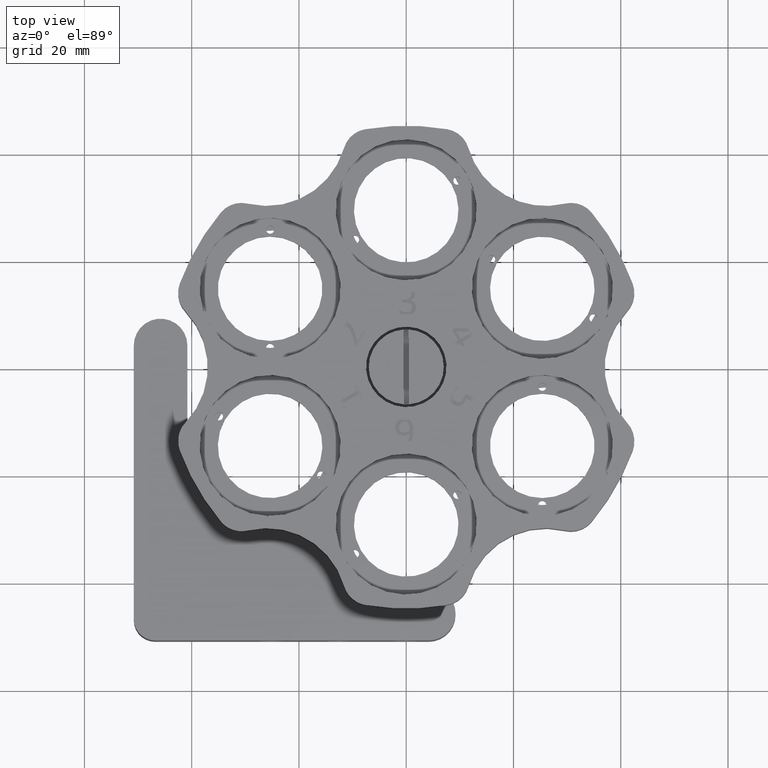
[diagram: clean part render]
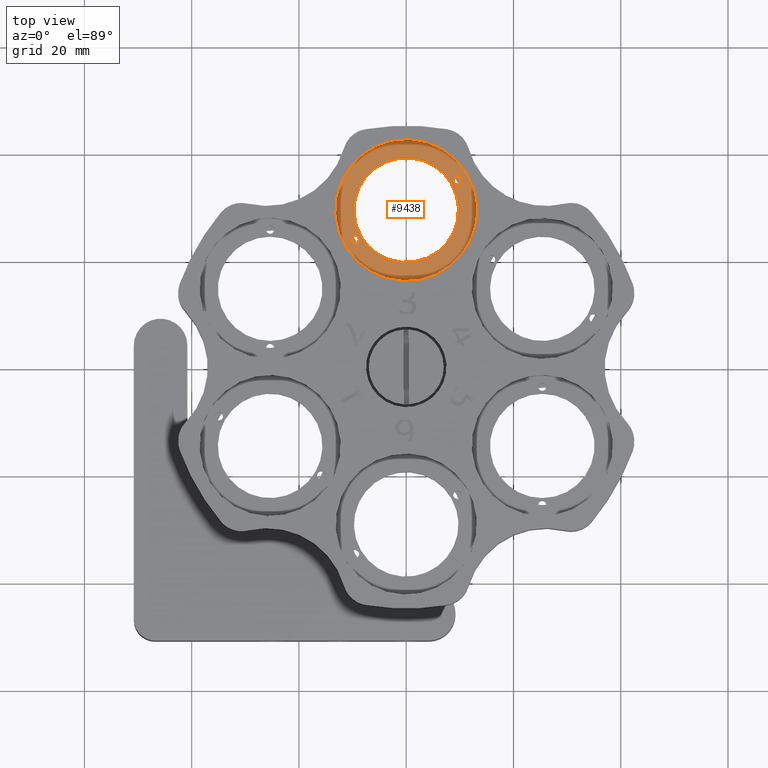
[diagram: same view with one face highlighted and labeled with its STEP entity id]
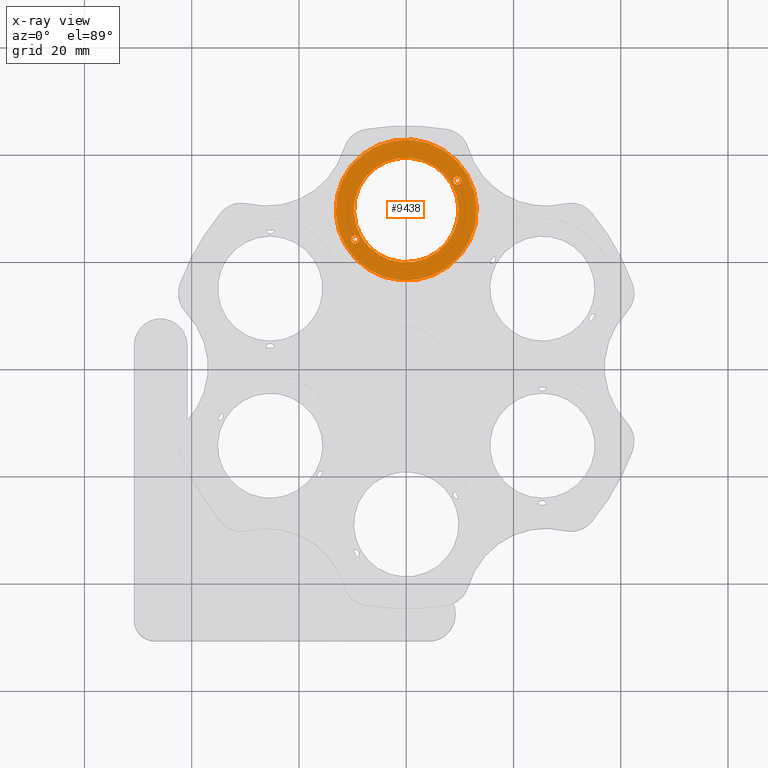
[diagram: x-ray of the same camera — body ghosted, the highlighted face saturated]
A machine part, top view. The second image highlights one B-rep face of the part: STEP entity #9438.
The next image is the same camera in x-ray: the body ghosted, the highlighted face saturated — about 0% of this face is hidden behind the body in this view.
In plain terms, the highlighted planar face has unit normal (0, 0, 1).
Its self-contained STEP definition (entity closure, byte-faithful):
#73 = ORIENTED_EDGE ( 'NONE', *, *, #5224, .F. ) ;
#481 = AXIS2_PLACEMENT_3D ( 'NONE', #11440, #4209, #12657 ) ;
#691 = DIRECTION ( 'NONE',  ( 1.060540212046021500E-016, 1.836909530733552100E-016, 1.000000000000000000 ) ) ;
#711 = EDGE_CURVE ( 'NONE', #15296, #12851, #9513, .T. ) ;
#881 = CARTESIAN_POINT ( 'NONE',  ( -4.676956828086179400E-013, 29.30000000000000100, 8.600000000000003200 ) ) ;
#1195 = VERTEX_POINT ( 'NONE', #10942 ) ;
#1351 = CARTESIAN_POINT ( 'NONE',  ( -4.676956828086179400E-013, 29.30000000000000100, 8.600000000000003200 ) ) ;
#1440 = ORIENTED_EDGE ( 'NONE', *, *, #12852, .F. ) ;
#1575 = EDGE_CURVE ( 'NONE', #12851, #15296, #12241, .T. ) ;
#1740 = EDGE_LOOP ( 'NONE', ( #13508, #73 ) ) ;
#1814 = CARTESIAN_POINT ( 'NONE',  ( -8.876760388791010900, 24.17500000000008200, 8.600000000000015600 ) ) ;
#1866 = EDGE_LOOP ( 'NONE', ( #5506, #2895 ) ) ;
#1963 = CIRCLE ( 'NONE', #9283, 9.750000000000016000 ) ;
#1994 = CARTESIAN_POINT ( 'NONE',  ( 11.38823405976496000, 35.87499999999990100, 8.600000000000001400 ) ) ;
#2392 = AXIS2_PLACEMENT_3D ( 'NONE', #9867, #12414, #9979 ) ;
#2616 = FACE_BOUND ( 'NONE', #1740, .T. ) ;
#2793 = CARTESIAN_POINT ( 'NONE',  ( -9.526279441629345300, 23.80000000000009000, 8.600000000000015600 ) ) ;
#2895 = ORIENTED_EDGE ( 'NONE', *, *, #14958, .F. ) ;
#3405 = CARTESIAN_POINT ( 'NONE',  ( -9.526279441629345300, 23.80000000000009000, 8.600000000000015600 ) ) ;
#3550 = DIRECTION ( 'NONE',  ( 1.060540212046021500E-016, 1.836909530733552100E-016, 1.000000000000000000 ) ) ;
#3623 = CARTESIAN_POINT ( 'NONE',  ( 10.17579849446674900, 35.17499999999992600, 8.599999999999990800 ) ) ;
#3734 = VERTEX_POINT ( 'NONE', #7343 ) ;
#3893 = PLANE ( 'NONE',  #12970 ) ;
#3942 = CIRCLE ( 'NONE', #481, 0.7500000000000010000 ) ;
#4059 = DIRECTION ( 'NONE',  ( 1.060540212046024400E-016, 1.836909530733554100E-016, 1.000000000000000000 ) ) ;
#4209 = DIRECTION ( 'NONE',  ( 1.060540212046021500E-016, 1.836909530733552100E-016, 1.000000000000000000 ) ) ;
#4344 = AXIS2_PLACEMENT_3D ( 'NONE', #15343, #691, #12953 ) ;
#4512 = DIRECTION ( 'NONE',  ( 0.8660254037844432600, 0.4999999999999918400, -1.319181350552703300E-016 ) ) ;
#4597 = ORIENTED_EDGE ( 'NONE', *, *, #711, .T. ) ;
#4605 = DIRECTION ( 'NONE',  ( 0.8660254037844440400, 0.4999999999999905100, 0.0000000000000000000 ) ) ;
#4658 = DIRECTION ( 'NONE',  ( 1.060540212046021500E-016, 1.836909530733552100E-016, 1.000000000000000000 ) ) ;
#4661 = DIRECTION ( 'NONE',  ( 0.8660254037844432600, 0.4999999999999917800, -1.779203565104414700E-016 ) ) ;
#5160 = EDGE_CURVE ( 'NONE', #12642, #14763, #1963, .T. ) ;
#5224 = EDGE_CURVE ( 'NONE', #14763, #12642, #6120, .T. ) ;
#5506 = ORIENTED_EDGE ( 'NONE', *, *, #6839, .F. ) ;
#5824 = FACE_OUTER_BOUND ( 'NONE', #12213, .T. ) ;
#6052 = AXIS2_PLACEMENT_3D ( 'NONE', #1351, #7288, #7342 ) ;
#6120 = CIRCLE ( 'NONE', #6052, 9.750000000000016000 ) ;
#6839 = EDGE_CURVE ( 'NONE', #11518, #3734, #8324, .T. ) ;
#6986 = CARTESIAN_POINT ( 'NONE',  ( -11.38823405976589800, 22.72500000000010400, 8.600000000000005000 ) ) ;
#7024 = AXIS2_PLACEMENT_3D ( 'NONE', #2793, #11239, #11395 ) ;
#7288 = DIRECTION ( 'NONE',  ( 1.060540212046021500E-016, 1.836909530733552100E-016, 1.000000000000000000 ) ) ;
#7342 = DIRECTION ( 'NONE',  ( 0.8660254037844432600, 0.4999999999999917800, -1.779203565104414700E-016 ) ) ;
#7343 = CARTESIAN_POINT ( 'NONE',  ( 8.876760388790081900, 34.42499999999994000, 8.599999999999990800 ) ) ;
#7527 = DIRECTION ( 'NONE',  ( 0.8660254037844432600, 0.4999999999999920100, -1.836909530733559700E-016 ) ) ;
#8108 = DIRECTION ( 'NONE',  ( 1.060540212046021500E-016, 1.836909530733552100E-016, 1.000000000000000000 ) ) ;
#8324 = CIRCLE ( 'NONE', #4344, 0.7500000000000010000 ) ;
#8699 = ORIENTED_EDGE ( 'NONE', *, *, #1575, .T. ) ;
#9041 = FACE_BOUND ( 'NONE', #12412, .T. ) ;
#9078 = CIRCLE ( 'NONE', #14283, 0.7500000000000010000 ) ;
#9283 = AXIS2_PLACEMENT_3D ( 'NONE', #15495, #3550, #4661 ) ;
#9438 = ADVANCED_FACE ( 'NONE', ( #14140, #9041, #5824, #2616 ), #3893, .T. ) ;
#9513 = CIRCLE ( 'NONE', #2392, 13.15000000000001600 ) ;
#9867 = CARTESIAN_POINT ( 'NONE',  ( -4.676956828086179400E-013, 29.30000000000000100, 8.600000000000003200 ) ) ;
#9979 = DIRECTION ( 'NONE',  ( 0.8660254037844432600, 0.4999999999999918400, -1.319181350552703300E-016 ) ) ;
#10090 = CARTESIAN_POINT ( 'NONE',  ( -8.443747686898792200, 24.42500000000007900, 8.600000000000005000 ) ) ;
#10367 = VERTEX_POINT ( 'NONE', #1814 ) ;
#10925 = CIRCLE ( 'NONE', #7024, 0.7500000000000010000 ) ;
#10942 = CARTESIAN_POINT ( 'NONE',  ( -10.17579849446768000, 23.42500000000010000, 8.600000000000015600 ) ) ;
#10961 = CARTESIAN_POINT ( 'NONE',  ( 8.443747686897854300, 34.17499999999991900, 8.600000000000001400 ) ) ;
#11239 = DIRECTION ( 'NONE',  ( 1.060540212046021500E-016, 1.836909530733552100E-016, 1.000000000000000000 ) ) ;
#11395 = DIRECTION ( 'NONE',  ( 0.8660254037844440400, 0.4999999999999905100, 0.0000000000000000000 ) ) ;
#11440 = CARTESIAN_POINT ( 'NONE',  ( 9.526279441628414400, 34.79999999999993300, 8.599999999999990800 ) ) ;
#11518 = VERTEX_POINT ( 'NONE', #3623 ) ;
#11978 = ORIENTED_EDGE ( 'NONE', *, *, #14268, .F. ) ;
#12213 = EDGE_LOOP ( 'NONE', ( #8699, #4597 ) ) ;
#12241 = CIRCLE ( 'NONE', #14156, 13.15000000000001600 ) ;
#12412 = EDGE_LOOP ( 'NONE', ( #1440, #11978 ) ) ;
#12414 = DIRECTION ( 'NONE',  ( 1.060540212046021500E-016, 1.836909530733552100E-016, 1.000000000000000000 ) ) ;
#12642 = VERTEX_POINT ( 'NONE', #10090 ) ;
#12657 = DIRECTION ( 'NONE',  ( -0.8660254037844440400, -0.4999999999999905100, 0.0000000000000000000 ) ) ;
#12851 = VERTEX_POINT ( 'NONE', #6986 ) ;
#12852 = EDGE_CURVE ( 'NONE', #10367, #1195, #9078, .T. ) ;
#12953 = DIRECTION ( 'NONE',  ( -0.8660254037844440400, -0.4999999999999905100, 0.0000000000000000000 ) ) ;
#12970 = AXIS2_PLACEMENT_3D ( 'NONE', #14771, #4059, #7527 ) ;
#13508 = ORIENTED_EDGE ( 'NONE', *, *, #5160, .F. ) ;
#14140 = FACE_BOUND ( 'NONE', #1866, .T. ) ;
#14156 = AXIS2_PLACEMENT_3D ( 'NONE', #881, #8108, #4512 ) ;
#14268 = EDGE_CURVE ( 'NONE', #1195, #10367, #10925, .T. ) ;
#14283 = AXIS2_PLACEMENT_3D ( 'NONE', #3405, #4658, #4605 ) ;
#14763 = VERTEX_POINT ( 'NONE', #10961 ) ;
#14771 = CARTESIAN_POINT ( 'NONE',  ( -4.676956828086179400E-013, 29.30000000000000100, 8.600000000000003200 ) ) ;
#14958 = EDGE_CURVE ( 'NONE', #3734, #11518, #3942, .T. ) ;
#15296 = VERTEX_POINT ( 'NONE', #1994 ) ;
#15343 = CARTESIAN_POINT ( 'NONE',  ( 9.526279441628414400, 34.79999999999993300, 8.599999999999990800 ) ) ;
#15495 = CARTESIAN_POINT ( 'NONE',  ( -4.676956828086179400E-013, 29.30000000000000100, 8.600000000000003200 ) ) ;